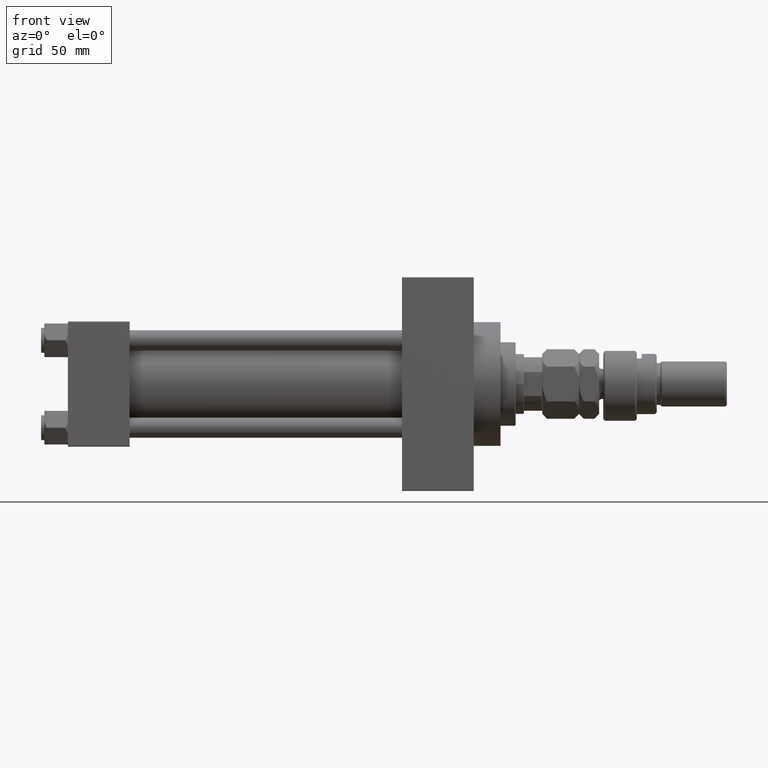
[diagram: clean part render]
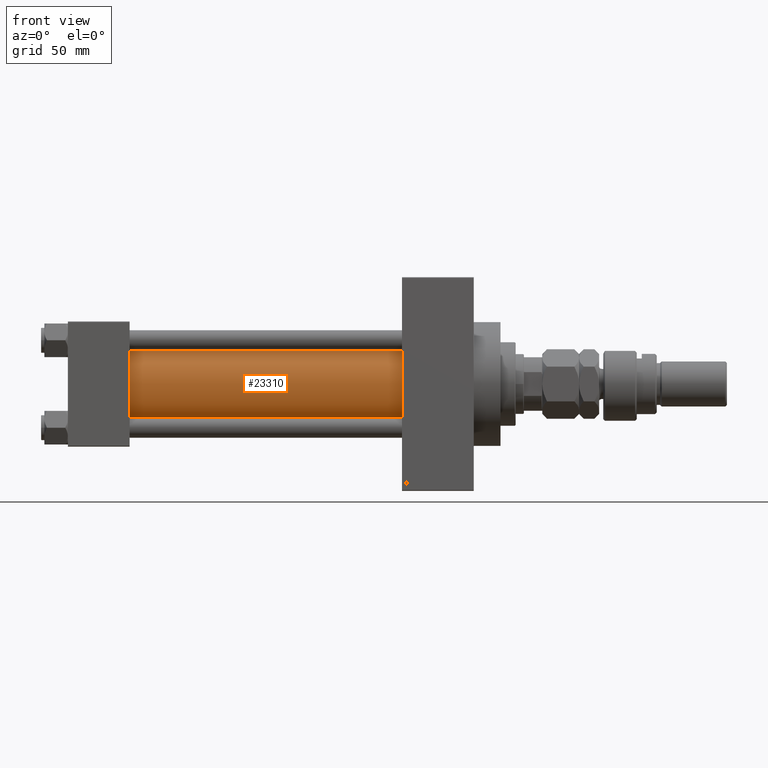
[diagram: same view with one face highlighted and labeled with its STEP entity id]
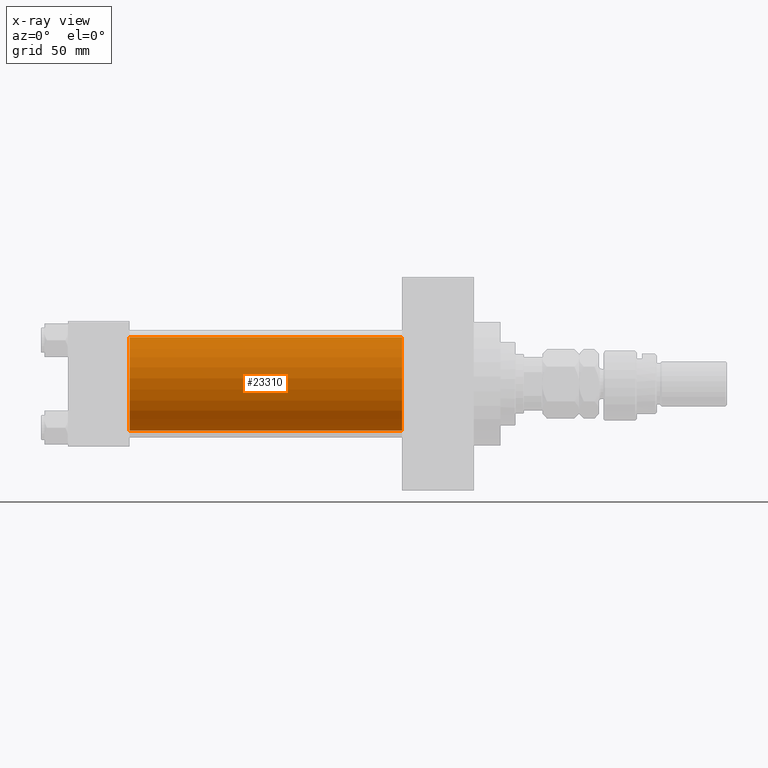
[diagram: x-ray of the same camera — body ghosted, the highlighted face saturated]
A machine part, front view. The second image highlights one B-rep face of the part: STEP entity #23310.
The next image is the same camera in x-ray: the body ghosted, the highlighted face saturated — about 0% of this face is hidden behind the body in this view.
In plain terms, the highlighted cylindrical surface (partial cylindrical patch) has radius 28 mm, axis along (-1, -0, -0).
Its self-contained STEP definition (entity closure, byte-faithful):
#85 = CARTESIAN_POINT ( 'NONE',  ( 37.00000000000000711, 8.269258236473784371E-16, -28.00000000000000000 ) ) ;
#2767 = CARTESIAN_POINT ( 'NONE',  ( 200.0000000000000000, 8.269258236473784371E-16, -28.00000000000000000 ) ) ;
#6183 = VECTOR ( 'NONE', #44030, 1000.000000000000000 ) ;
#6610 = EDGE_LOOP ( 'NONE', ( #7798, #31955, #45567, #18386 ) ) ;
#7798 = ORIENTED_EDGE ( 'NONE', *, *, #25180, .F. ) ;
#7878 = DIRECTION ( 'NONE',  ( 1.000000000000000000, 0.000000000000000000, 0.000000000000000000 ) ) ;
#8138 = CARTESIAN_POINT ( 'NONE',  ( 200.0000000000000000, -2.602085213965210642E-15, 0.000000000000000000 ) ) ;
#8281 = EDGE_CURVE ( 'NONE', #46447, #27971, #36640, .T. ) ;
#9878 = CARTESIAN_POINT ( 'NONE',  ( 200.0000000000000000, -2.602085213965210642E-15, 28.00000000000000000 ) ) ;
#10758 = AXIS2_PLACEMENT_3D ( 'NONE', #8138, #7878, #16092 ) ;
#11785 = CARTESIAN_POINT ( 'NONE',  ( 37.00000000000000711, -2.602085213965210642E-15, 28.00000000000000000 ) ) ;
#12026 = FACE_OUTER_BOUND ( 'NONE', #6610, .T. ) ;
#12161 = CARTESIAN_POINT ( 'NONE',  ( 200.0000000000000000, 8.269258236473784371E-16, -28.00000000000000000 ) ) ;
#15212 = DIRECTION ( 'NONE',  ( 1.000000000000000000, -0.000000000000000000, 0.000000000000000000 ) ) ;
#16092 = DIRECTION ( 'NONE',  ( 0.000000000000000000, 0.000000000000000000, -1.000000000000000000 ) ) ;
#18386 = ORIENTED_EDGE ( 'NONE', *, *, #8281, .T. ) ;
#19462 = CARTESIAN_POINT ( 'NONE',  ( 37.00000000000000711, -2.602085213965210642E-15, 0.000000000000000000 ) ) ;
#21342 = AXIS2_PLACEMENT_3D ( 'NONE', #19462, #15212, #43602 ) ;
#23310 = ADVANCED_FACE ( 'NONE', ( #12026 ), #41207, .T. ) ;
#24767 = DIRECTION ( 'NONE',  ( -1.000000000000000000, -0.000000000000000000, -0.000000000000000000 ) ) ;
#25180 = EDGE_CURVE ( 'NONE', #36589, #27971, #47331, .T. ) ;
#26790 = CARTESIAN_POINT ( 'NONE',  ( 200.0000000000000000, -2.602085213965210642E-15, 28.00000000000000000 ) ) ;
#27720 = DIRECTION ( 'NONE',  ( -1.000000000000000000, -0.000000000000000000, -0.000000000000000000 ) ) ;
#27802 = VECTOR ( 'NONE', #27720, 1000.000000000000000 ) ;
#27971 = VERTEX_POINT ( 'NONE', #85 ) ;
#31938 = CARTESIAN_POINT ( 'NONE',  ( 200.0000000000000000, -2.602085213965210642E-15, 0.000000000000000000 ) ) ;
#31955 = ORIENTED_EDGE ( 'NONE', *, *, #45387, .F. ) ;
#33676 = AXIS2_PLACEMENT_3D ( 'NONE', #31938, #24767, #48105 ) ;
#35361 = CIRCLE ( 'NONE', #10758, 28.00000000000000000 ) ;
#36589 = VERTEX_POINT ( 'NONE', #12161 ) ;
#36640 = CIRCLE ( 'NONE', #21342, 28.00000000000000000 ) ;
#38727 = VERTEX_POINT ( 'NONE', #9878 ) ;
#39045 = EDGE_CURVE ( 'NONE', #38727, #46447, #51725, .T. ) ;
#41207 = CYLINDRICAL_SURFACE ( 'NONE', #33676, 28.00000000000000000 ) ;
#43602 = DIRECTION ( 'NONE',  ( 0.000000000000000000, 0.000000000000000000, 1.000000000000000000 ) ) ;
#44030 = DIRECTION ( 'NONE',  ( -1.000000000000000000, -0.000000000000000000, -0.000000000000000000 ) ) ;
#45387 = EDGE_CURVE ( 'NONE', #38727, #36589, #35361, .T. ) ;
#45567 = ORIENTED_EDGE ( 'NONE', *, *, #39045, .T. ) ;
#46447 = VERTEX_POINT ( 'NONE', #11785 ) ;
#47331 = LINE ( 'NONE', #2767, #27802 ) ;
#48105 = DIRECTION ( 'NONE',  ( 0.000000000000000000, 0.000000000000000000, 1.000000000000000000 ) ) ;
#51725 = LINE ( 'NONE', #26790, #6183 ) ;